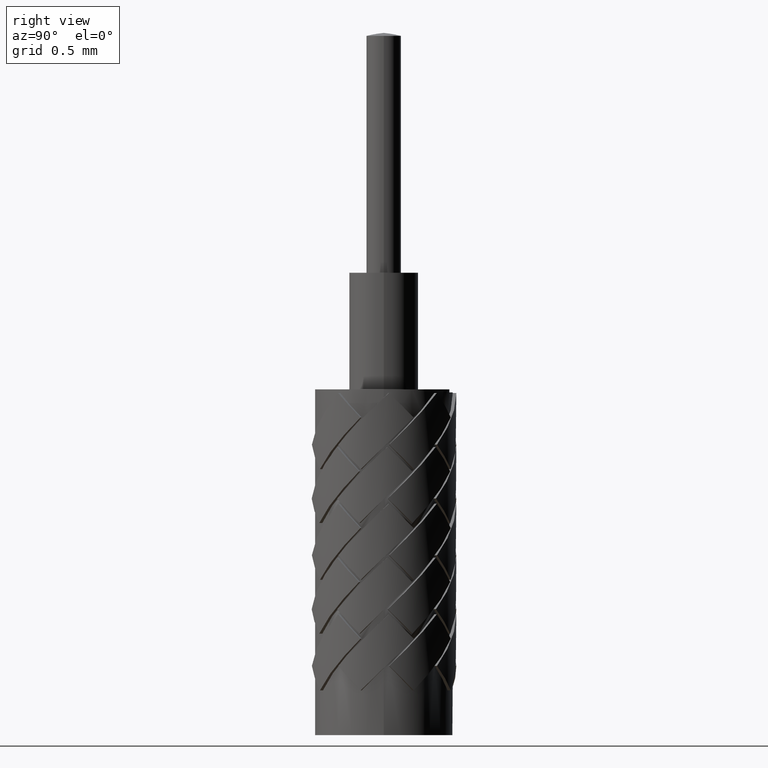
[diagram: clean part render]
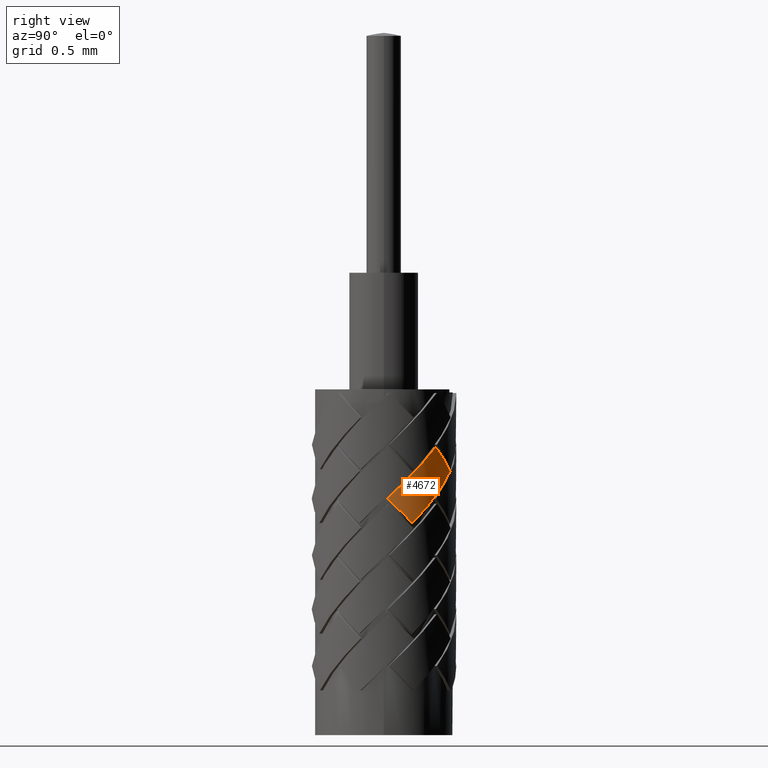
[diagram: same view with one face highlighted and labeled with its STEP entity id]
A machine part, right view. The second image highlights one B-rep face of the part: STEP entity #4672.
In plain terms, the highlighted cylindrical surface (partial cylindrical patch) has radius 0.5334 mm, axis along (0, 0, -1).
Its self-contained STEP definition (entity closure, byte-faithful):
#596 = FACE_OUTER_BOUND ( 'NONE', #650, .T. ) ;
#602 = CYLINDRICAL_SURFACE ( 'NONE', #4365, 0.02099999999999999800 ) ;
#650 = EDGE_LOOP ( 'NONE', ( #3624, #3619, #3617, #3626 ) ) ;
#931 = B_SPLINE_CURVE_WITH_KNOTS ( 'NONE', 3,
 ( #5556, #5558, #5551, #5547 ),
 .UNSPECIFIED., .F., .F.,
 ( 4, 4 ),
 ( 0.0000000000000000000, 1.000000000000000000 ),
 .UNSPECIFIED. ) ;
#990 = B_SPLINE_CURVE_WITH_KNOTS ( 'NONE', 3,
 ( #5572, #5573, #5561, #5559 ),
 .UNSPECIFIED., .F., .F.,
 ( 4, 4 ),
 ( 0.0000000000000000000, 0.9999986080573370900 ),
 .UNSPECIFIED. ) ;
#1050 = B_SPLINE_CURVE_WITH_KNOTS ( 'NONE', 3,
 ( #5804, #5982, #5184, #5292 ),
 .UNSPECIFIED., .F., .F.,
 ( 4, 4 ),
 ( 1.391942662784005100E-006, 0.9999986080573364200 ),
 .UNSPECIFIED. ) ;
#1075 = B_SPLINE_CURVE_WITH_KNOTS ( 'NONE', 3,
 ( #5530, #5533, #5527, #5526 ),
 .UNSPECIFIED., .F., .F.,
 ( 4, 4 ),
 ( 0.0000000000000000000, 0.9999993407083085400 ),
 .UNSPECIFIED. ) ;
#1419 = VERTEX_POINT ( 'NONE', #5231 ) ;
#1421 = VERTEX_POINT ( 'NONE', #5269 ) ;
#1471 = VERTEX_POINT ( 'NONE', #5476 ) ;
#1482 = VERTEX_POINT ( 'NONE', #5467 ) ;
#2744 = EDGE_CURVE ( 'NONE', #1471, #1421, #1050, .T. ) ;
#2755 = EDGE_CURVE ( 'NONE', #1482, #1419, #990, .T. ) ;
#2757 = EDGE_CURVE ( 'NONE', #1419, #1471, #931, .T. ) ;
#2761 = EDGE_CURVE ( 'NONE', #1421, #1482, #1075, .T. ) ;
#3617 = ORIENTED_EDGE ( 'NONE', *, *, #2755, .T. ) ;
#3619 = ORIENTED_EDGE ( 'NONE', *, *, #2761, .T. ) ;
#3624 = ORIENTED_EDGE ( 'NONE', *, *, #2744, .T. ) ;
#3626 = ORIENTED_EDGE ( 'NONE', *, *, #2757, .T. ) ;
#4365 = AXIS2_PLACEMENT_3D ( 'NONE', #6787, #6773, #6788 ) ;
#4672 = ADVANCED_FACE ( 'NONE', ( #596 ), #602, .T. ) ;
#5184 = CARTESIAN_POINT ( 'NONE',  ( 0.01285023253508140400, 0.01679275110551536500, 0.08098726947270777600 ) ) ;
#5231 = CARTESIAN_POINT ( 'NONE',  ( 0.01928108375777855300, 0.008321046155714323700, 0.06134430520002421400 ) ) ;
#5269 = CARTESIAN_POINT ( 'NONE',  ( 0.01462613212957999600, 0.01506904970222302000, 0.08334428551498229700 ) ) ;
#5292 = CARTESIAN_POINT ( 'NONE',  ( 0.01462613212957999600, 0.01506904970222302000, 0.08334428551498229700 ) ) ;
#5467 = CARTESIAN_POINT ( 'NONE',  ( 0.02096954122680619300, 0.001130637314648362800, 0.06841537301188967100 ) ) ;
#5476 = CARTESIAN_POINT ( 'NONE',  ( 0.008504089170859924600, 0.01920105380894660300, 0.07627323738815874900 ) ) ;
#5526 = CARTESIAN_POINT ( 'NONE',  ( 0.02096954122680619300, 0.001130637314648362800, 0.06841537301188967100 ) ) ;
#5527 = CARTESIAN_POINT ( 'NONE',  ( 0.02068822128228221800, 0.006348181524617221700, 0.07339168046042753000 ) ) ;
#5530 = CARTESIAN_POINT ( 'NONE',  ( 0.01462613212957999600, 0.01506904970222302000, 0.08334428551498229700 ) ) ;
#5533 = CARTESIAN_POINT ( 'NONE',  ( 0.01837554896827927800, 0.01142983414615176100, 0.07836798790896538900 ) ) ;
#5547 = CARTESIAN_POINT ( 'NONE',  ( 0.008504089170859924600, 0.01920105380894660300, 0.07627323738815874900 ) ) ;
#5551 = CARTESIAN_POINT ( 'NONE',  ( 0.01328160126707487000, 0.01708511083594367200, 0.07129691681625961700 ) ) ;
#5556 = CARTESIAN_POINT ( 'NONE',  ( 0.01928108375777855300, 0.008321046155714323700, 0.06134430520002421400 ) ) ;
#5558 = CARTESIAN_POINT ( 'NONE',  ( 0.01721067173861446500, 0.01311848782442938700, 0.06632060608688143700 ) ) ;
#5559 = CARTESIAN_POINT ( 'NONE',  ( 0.01928108375777855300, 0.008321046155714323700, 0.06134430520002421400 ) ) ;
#5561 = CARTESIAN_POINT ( 'NONE',  ( 0.02026172708665600900, 0.006048751806330329500, 0.06370132452313905000 ) ) ;
#5572 = CARTESIAN_POINT ( 'NONE',  ( 0.02096954122680619300, 0.001130637314648362800, 0.06841537301188967100 ) ) ;
#5573 = CARTESIAN_POINT ( 'NONE',  ( 0.02083629629949830500, 0.003601907753986437600, 0.06605834384625389200 ) ) ;
#5804 = CARTESIAN_POINT ( 'NONE',  ( 0.008504089170859924600, 0.01920105380894660300, 0.07627323738815874900 ) ) ;
#5982 = CARTESIAN_POINT ( 'NONE',  ( 0.01076694876367310200, 0.01819884007891410900, 0.07863025343043327000 ) ) ;
#6773 = DIRECTION ( 'NONE',  ( 0.0000000000000000000, 0.0000000000000000000, -1.000000000000000000 ) ) ;
#6787 = CARTESIAN_POINT ( 'NONE',  ( 0.0000000000000000000, 0.0000000000000000000, 0.09999999999999999200 ) ) ;
#6788 = DIRECTION ( 'NONE',  ( -1.000000000000000000, 0.0000000000000000000, 0.0000000000000000000 ) ) ;